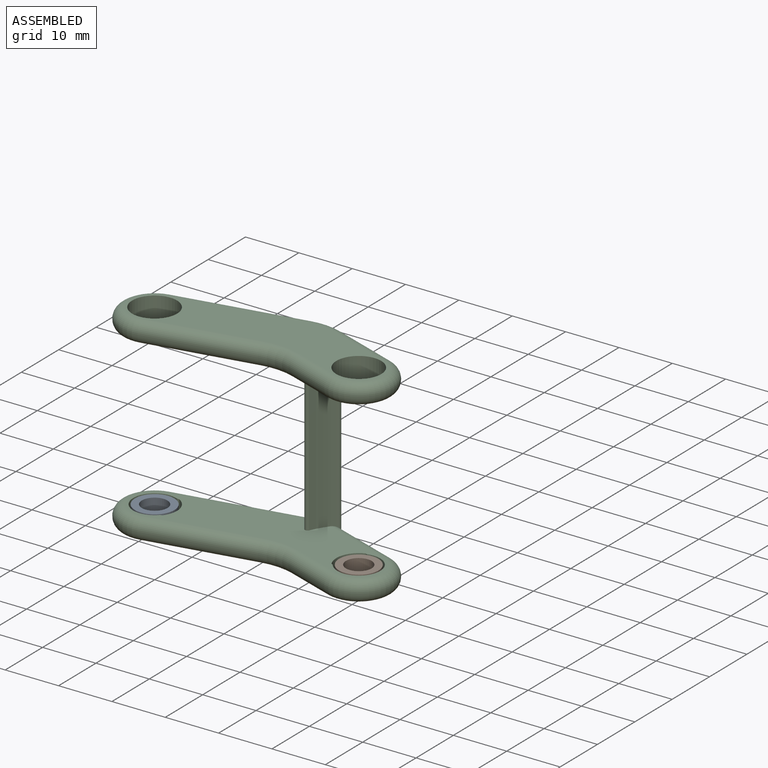
[diagram: assembled view]
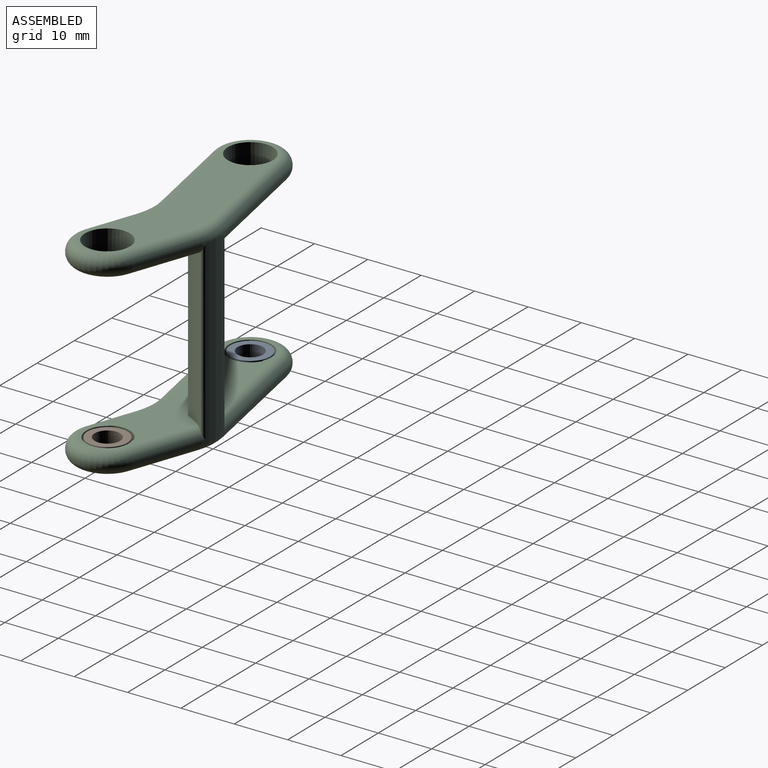
[diagram: assembled view, second angle]
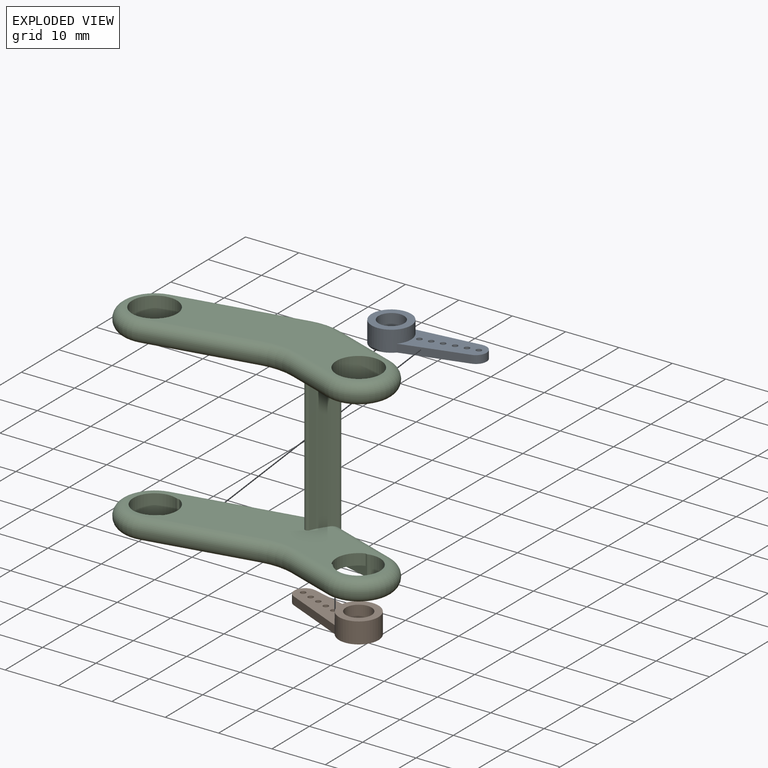
[diagram: exploded view]
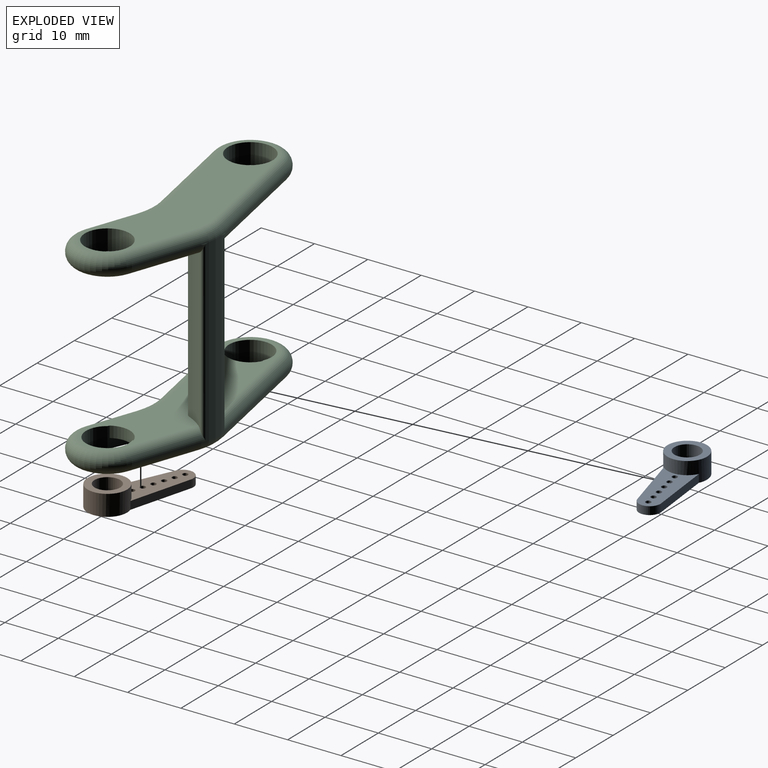
[diagram: exploded view, second angle]
ASSEMBLY  parts=3 mates=4
PART A: 18 faces, bbox 19.9x7.4x3.9 mm
  f0: cylinder r=1.25mm len=2.5mm, axis (0,0,1), area 5.5mm2, adj f1,f7
  f1: plane 5x5mm, normal (0,0,1), area 14.7mm2, adj f0,f2
  f2: cylinder r=2.5mm len=5mm, axis (0,0,1), area 11mm2, adj f1,f3
  f3: plane 19.9x7.4mm, normal (0,0,1), area 78.2mm2, adj f2,f4,f8,f9,f10,f11,f12,f13
  f4: cylinder r=3.7mm len=7.4mm, axis (0,0,1), area 80.4mm2, adj f3,f5,f8,f9,f17
  f5: plane 7.4x7.4mm, normal (0,0,-1), area 24.9mm2, adj f4,f6
  f6: cylinder r=2.4mm len=4.8mm, axis (0,0,1), area 37.7mm2, adj f5,f7
  f7: plane 4.8x4.8mm, normal (0,0,-1), area 13.2mm2, adj f0,f6
  f8: plane 12.12x1.5mm, normal (0.08,1,0), area 18.2mm2, adj f3,f4,f16,f17
  f9: plane 12.12x1.5mm, normal (0.08,-1,0), area 18.2mm2, adj f3,f4,f16,f17
  f10: cylinder r=0.5mm len=1.5mm, axis (0,0,-1), area 4.7mm2, adj f3,f17
  f11: cylinder r=0.5mm len=1.5mm, axis (0,0,-1), area 4.7mm2, adj f3,f17
  f12: cylinder r=0.5mm len=1.5mm, axis (0,0,-1), area 4.7mm2, adj f3,f17
  f13: cylinder r=0.5mm len=1.5mm, axis (0,0,-1), area 4.7mm2, adj f3,f17
  f14: cylinder r=0.5mm len=1.5mm, axis (0,0,-1), area 4.7mm2, adj f3,f17
  f15: cylinder r=0.5mm len=1.5mm, axis (0,0,-1), area 4.7mm2, adj f3,f17
  f16: cylinder r=2mm len=3.99mm, axis (0,0,-1), area 9mm2, adj f3,f8,f9,f17
  f17: plane 13.97x5.9mm, normal (0,0,-1), area 54.8mm2, adj f4,f8,f9,f10,f11,f12,f13,f14
PART B: same geometry as A
PART C: 72 faces, bbox 52.3x19.1x37.3 mm
  f0: plane 47.46x13.74mm, normal (0,0,1), area 319.6mm2, adj f11,f12,f13,f24,f25,f26,f27,f28
  f1: plane 47.46x13.84mm, normal (0,0,-1), area 197.2mm2, adj f42,f43,f44,f45,f46,f47,f48,f49
  f2: plane 12.32x4.36mm, normal (0.33,0.94,0), area 1.3mm2, adj f8,f14,f40,f56
  f3: plane 23.36x4.55mm, normal (-0.19,0.98,0), area 2.4mm2, adj f4,f14,f34,f52
  f4: cylinder r=6.5mm len=12.88mm, axis (0,0,1), area 2mm2, adj f3,f5,f35,f50
  f5: plane 19.88x3.87mm, normal (0.19,-0.98,0), area 2mm2, adj f4,f6,f36,f51
  f6: cylinder r=11.43mm len=6mm, axis (0,0,1), area 0.6mm2, adj f5,f7,f37,f53
  f7: plane 8.97x3.18mm, normal (-0.33,-0.94,0), area 1mm2, adj f6,f8,f38,f55
  f8: cylinder r=6.5mm len=12.63mm, axis (0,0,1), area 2mm2, adj f2,f7,f39,f57
  f9: plane 47.46x13.74mm, normal (0,0,-1), area 312.2mm2, adj f11,f12,f13,f33,f34,f35,f36,f37
  f10: plane 47.46x13.84mm, normal (0,0,1), area 320.1mm2, adj f50,f51,f52,f53,f54,f55,f56,f57
  f11: cylinder r=24.67mm len=30.46mm, axis (0,0,1), area 138.5mm2, adj f0,f9,f12,f16,f24,f33
  f12: cylinder r=0.5mm len=29.5mm, axis (0,0,1), area 36.7mm2, adj f0,f9,f11,f13
  f13: cylinder r=14.59mm len=30.32mm, axis (0,0,1), area 144.5mm2, adj f0,f9,f12,f15,f32,f41
  f14: cylinder r=11.43mm len=33.5mm, axis (0,0,1), area 153.5mm2, adj f2,f3,f15,f16,f17,f18,f24,f32
  f15: cylinder r=0.5mm len=33.3mm, axis (0,0,-1), area 32.4mm2, adj f13,f14,f32,f41
  f16: cylinder r=0.5mm len=33.3mm, axis (0,0,-1), area 29.7mm2, adj f11,f14,f24,f33
  f17: plane 12.32x4.36mm, normal (0.33,0.94,0), area 1.3mm2, adj f14,f23,f31,f48
  f18: plane 23.36x4.55mm, normal (-0.19,0.98,0), area 2.4mm2, adj f14,f19,f25,f44
  f19: cylinder r=6.5mm len=12.88mm, axis (0,0,-1), area 2mm2, adj f18,f20,f26,f42
  f20: plane 19.88x3.87mm, normal (0.19,-0.98,0), area 2mm2, adj f19,f21,f27,f43
  f21: cylinder r=11.43mm len=6mm, axis (0,0,-1), area 0.6mm2, adj f20,f22,f28,f45
  f22: plane 8.97x3.18mm, normal (-0.33,-0.94,0), area 1mm2, adj f21,f23,f29,f47
  f23: cylinder r=6.5mm len=12.63mm, axis (0,0,-1), area 2mm2, adj f17,f22,f30,f49
  f24: torus R=9.53mm, axis (0,0,1), area 1mm2, adj f0,f11,f14,f16,f25
  f25: cylinder r=1.9mm len=23.72mm, axis (0.98,0.19,0), area 71mm2, adj f0,f18,f24,f26
  f26: torus R=4.6mm, axis (0,0,1), area 54.5mm2, adj f0,f19,f25,f27
  f27: cylinder r=1.9mm len=20.24mm, axis (-0.98,-0.19,0), area 60.4mm2, adj f0,f20,f26,f28
  f28: torus R=13.33mm, axis (0,0,1), area 19.3mm2, adj f0,f21,f27,f29
  f29: cylinder r=1.9mm len=9.61mm, axis (-0.94,0.33,0), area 28.4mm2, adj f0,f22,f28,f30
  f30: torus R=4.6mm, axis (0,0,1), area 54.5mm2, adj f0,f23,f29,f31
  f31: cylinder r=1.9mm len=12.95mm, axis (0.94,-0.33,0), area 39mm2, adj f0,f17,f30,f32
  f32: torus R=9.53mm, axis (0,0,1), area 1.5mm2, adj f0,f13,f14,f15,f31
  f33: torus R=9.53mm, axis (0,0,-1), area 1mm2, adj f9,f11,f14,f16,f34
  f34: cylinder r=1.9mm len=23.72mm, axis (0.98,0.19,0), area 71mm2, adj f3,f9,f33,f35
  f35: torus R=4.6mm, axis (0,0,-1), area 54.5mm2, adj f4,f9,f34,f36
  f36: cylinder r=1.9mm len=20.24mm, axis (-0.98,-0.19,0), area 60.4mm2, adj f5,f9,f35,f37
  f37: torus R=13.33mm, axis (0,0,-1), area 19.3mm2, adj f6,f9,f36,f38
  f38: cylinder r=1.9mm len=9.61mm, axis (-0.94,0.33,0), area 28.4mm2, adj f7,f9,f37,f39
  f39: torus R=4.6mm, axis (0,0,-1), area 54.5mm2, adj f8,f9,f38,f40
  f40: cylinder r=1.9mm len=12.95mm, axis (0.94,-0.33,0), area 39mm2, adj f2,f9,f39,f41
  f41: torus R=9.53mm, axis (0,0,-1), area 1.5mm2, adj f9,f13,f14,f15,f40
  f42: torus R=4.6mm, axis (0,0,1), area 54.5mm2, adj f1,f19,f43,f44
  f43: cylinder r=1.9mm len=20.24mm, axis (0.98,0.19,0), area 60.4mm2, adj f1,f20,f42,f45
  f44: cylinder r=1.9mm len=23.72mm, axis (-0.98,-0.19,0), area 71mm2, adj f1,f18,f42,f46
  f45: torus R=13.33mm, axis (0,0,1), area 19.3mm2, adj f1,f21,f43,f47
  f46: torus R=9.53mm, axis (0,0,1), area 17.1mm2, adj f1,f14,f44,f48
  f47: cylinder r=1.9mm len=9.61mm, axis (0.94,-0.33,0), area 28.4mm2, adj f1,f22,f45,f49
  f48: cylinder r=1.9mm len=12.95mm, axis (-0.94,0.33,0), area 39mm2, adj f1,f17,f46,f49
  f49: torus R=4.6mm, axis (0,0,1), area 54.5mm2, adj f1,f23,f47,f48
  f50: torus R=4.6mm, axis (0,0,-1), area 54.5mm2, adj f4,f10,f51,f52
  f51: cylinder r=1.9mm len=20.24mm, axis (0.98,0.19,0), area 60.4mm2, adj f5,f10,f50,f53
  f52: cylinder r=1.9mm len=23.72mm, axis (-0.98,-0.19,0), area 71mm2, adj f3,f10,f50,f54
  f53: torus R=13.33mm, axis (0,0,-1), area 19.3mm2, adj f6,f10,f51,f55
  f54: torus R=9.53mm, axis (0,0,-1), area 17.1mm2, adj f10,f14,f52,f56
  f55: cylinder r=1.9mm len=9.61mm, axis (0.94,-0.33,0), area 28.4mm2, adj f7,f10,f53,f57
  f56: cylinder r=1.9mm len=12.95mm, axis (-0.94,0.33,0), area 39mm2, adj f2,f10,f54,f57
  f57: torus R=4.6mm, axis (0,0,-1), area 54.5mm2, adj f8,f10,f55,f56
  f58: cylinder r=4.2mm len=8.4mm, axis (0,0,1), area 102.9mm2, adj f9,f10
  f59: cylinder r=4.2mm len=8.4mm, axis (0,0,1), area 102.9mm2, adj f9,f10
  f60: plane 11.03x4.91mm, normal (0.41,0.91,0), area 22.5mm2, adj f0,f1,f61,f62,f63,f71
  f61: plane 14.21x9.17mm, normal (0,0,-1), area 65.1mm2, adj f60,f63,f64,f71
  f62: cylinder r=4mm len=8mm, axis (0,0,1), area 68.5mm2, adj f0,f1,f60,f64
  f63: cylinder r=2.3mm len=4.4mm, axis (0,0,1), area 12.4mm2, adj f1,f60,f61,f64
  f64: plane 11.67x3.9mm, normal (-0.26,-0.97,0), area 22.5mm2, adj f0,f1,f61,f62,f63,f71
  f65: cylinder r=4mm len=8mm, axis (0,0,1), area 68.5mm2, adj f0,f1,f66,f68
  f66: plane 11.63x3.9mm, normal (-0.27,0.96,0), area 22.5mm2, adj f0,f1,f65,f67,f69,f70
  f67: cylinder r=2.3mm len=4.52mm, axis (0,0,1), area 12.4mm2, adj f1,f66,f68,f69
  f68: plane 12x3.9mm, normal (0.11,-0.99,0), area 22.5mm2, adj f0,f1,f65,f67,f69,f70
  f69: plane 14.2x7.65mm, normal (0,0,-1), area 65.1mm2, adj f66,f67,f68,f70
  f70: cylinder r=4.2mm len=6.31mm, axis (0,0,1), area 15.4mm2, adj f0,f66,f68,f69
  f71: cylinder r=4.2mm len=6.06mm, axis (0,0,1), area 15.4mm2, adj f0,f60,f61,f64
PLACE A rot(axis=(1,0.1,0),180deg) t=(5.1,0.99,-17.3)mm
PLACE B rot(axis=(-0.17,-0.99,0),180deg) t=(33.36,1.74,-17.3)mm
PLACE C at identity
MATE parallel B.f8 <-> C.f64  axis (0.26,0.97,0) through (31.27,5.1,-36.55)mm
MATE parallel A.f9 <-> C.f68  axis (-0.11,0.99,0) through (7.67,4.01,-36.55)mm
MATE revolute B.f0 <-> C.f8  axis (0,0,-1) through (38.26,0,-37.3)mm
MATE revolute A.f0 <-> C.f4  axis (0,0,-1) through (0,0,-37.3)mm
